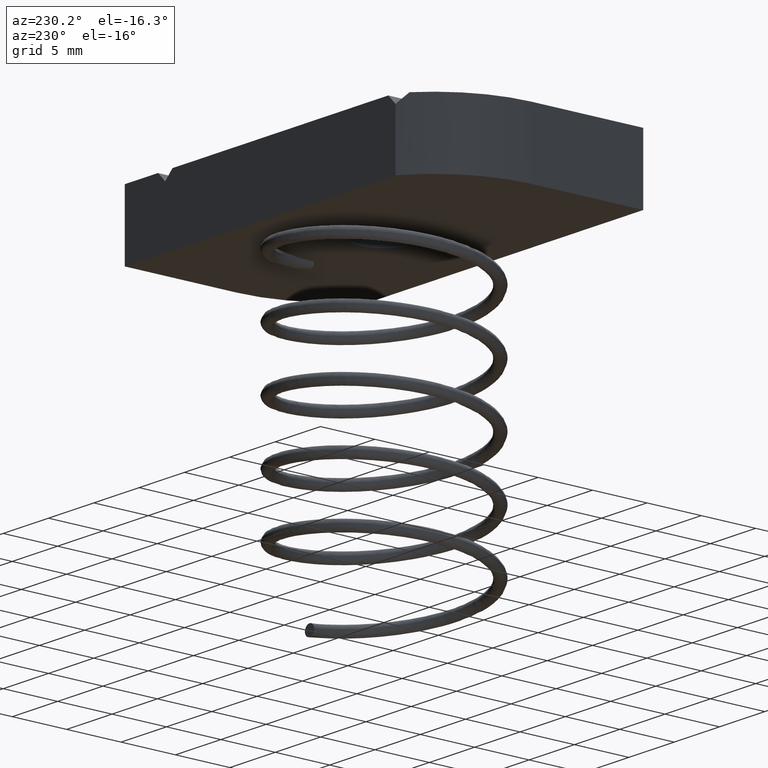
[diagram: clean part render]
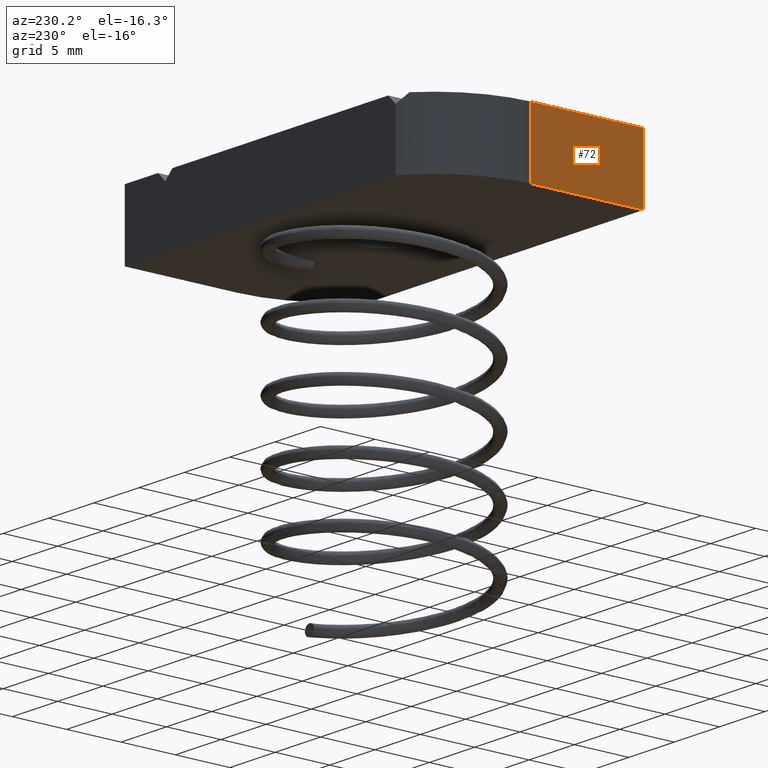
[diagram: same view with one face highlighted and labeled with its STEP entity id]
A machine part, auxiliary view. The second image highlights one B-rep face of the part: STEP entity #72.
In plain terms, the highlighted planar face has unit normal (1, -0, 0).
Its self-contained STEP definition (entity closure, byte-faithful):
#1 = ORIENTED_EDGE ( 'NONE', *, *, #101, .T. ) ;
#12 = LINE ( 'NONE', #997, #1171 ) ;
#35 = ORIENTED_EDGE ( 'NONE', *, *, #100, .F. ) ;
#37 = ORIENTED_EDGE ( 'NONE', *, *, #103, .F. ) ;
#72 = ADVANCED_FACE ( 'NONE', ( #1164 ), #2596, .F. ) ;
#98 = EDGE_CURVE ( 'NONE', #2587, #2582, #257, .T. ) ;
#100 = EDGE_CURVE ( 'NONE', #2587, #2556, #263, .T. ) ;
#101 = EDGE_CURVE ( 'NONE', #2582, #2557, #12, .T. ) ;
#103 = EDGE_CURVE ( 'NONE', #2556, #2557, #255, .T. ) ;
#117 = AXIS2_PLACEMENT_3D ( 'NONE', #2603, #2558, #2559 ) ;
#255 = LINE ( 'NONE', #851, #1991 ) ;
#257 = LINE ( 'NONE', #850, #259 ) ;
#259 = VECTOR ( 'NONE', #991, 39.37007874015748100 ) ;
#262 = VECTOR ( 'NONE', #996, 39.37007874015748100 ) ;
#263 = LINE ( 'NONE', #992, #262 ) ;
#850 = CARTESIAN_POINT ( 'NONE',  ( -0.6759999999999999300, 0.03100000000000002400, 0.1189999999999999900 ) ) ;
#851 = CARTESIAN_POINT ( 'NONE',  ( -0.6760000000000001600, -0.3750000000000000600, 0.1189999999999999900 ) ) ;
#991 = DIRECTION ( 'NONE',  ( -0.0000000000000000000, -0.0000000000000000000, -1.000000000000000000 ) ) ;
#992 = CARTESIAN_POINT ( 'NONE',  ( -0.6760000000000001600, -0.3750000000000000600, 0.1189999999999999900 ) ) ;
#996 = DIRECTION ( 'NONE',  ( -3.364344819783575000E-016, -1.000000000000000000, -0.0000000000000000000 ) ) ;
#997 = CARTESIAN_POINT ( 'NONE',  ( -0.6760000000000001600, -0.3750000000000000600, -0.1189999999999999900 ) ) ;
#998 = DIRECTION ( 'NONE',  ( -3.364344819783575000E-016, -1.000000000000000000, -0.0000000000000000000 ) ) ;
#1002 = DIRECTION ( 'NONE',  ( -0.0000000000000000000, -0.0000000000000000000, -1.000000000000000000 ) ) ;
#1064 = CARTESIAN_POINT ( 'NONE',  ( -0.6760000000000001600, -0.3750000000000000600, -0.1189999999999999900 ) ) ;
#1071 = CARTESIAN_POINT ( 'NONE',  ( -0.6760000000000001600, -0.3750000000000000600, 0.1189999999999999900 ) ) ;
#1081 = CARTESIAN_POINT ( 'NONE',  ( -0.6759999999999999300, 0.03100000000000002400, -0.1189999999999999900 ) ) ;
#1085 = CARTESIAN_POINT ( 'NONE',  ( -0.6759999999999999300, 0.03100000000000002400, 0.1189999999999999900 ) ) ;
#1162 = EDGE_LOOP ( 'NONE', ( #1, #37, #35, #2057 ) ) ;
#1164 = FACE_OUTER_BOUND ( 'NONE', #1162, .T. ) ;
#1171 = VECTOR ( 'NONE', #998, 39.37007874015748100 ) ;
#1991 = VECTOR ( 'NONE', #1002, 39.37007874015748100 ) ;
#2057 = ORIENTED_EDGE ( 'NONE', *, *, #98, .T. ) ;
#2556 = VERTEX_POINT ( 'NONE', #1071 ) ;
#2557 = VERTEX_POINT ( 'NONE', #1064 ) ;
#2558 = DIRECTION ( 'NONE',  ( 1.000000000000000000, -3.364344819783575000E-016, 0.0000000000000000000 ) ) ;
#2559 = DIRECTION ( 'NONE',  ( 3.364344819783575000E-016, 1.000000000000000000, 0.0000000000000000000 ) ) ;
#2582 = VERTEX_POINT ( 'NONE', #1081 ) ;
#2587 = VERTEX_POINT ( 'NONE', #1085 ) ;
#2596 = PLANE ( 'NONE',  #117 ) ;
#2603 = CARTESIAN_POINT ( 'NONE',  ( -0.6760000000000001600, -0.3750000000000000600, 0.1189999999999999900 ) ) ;